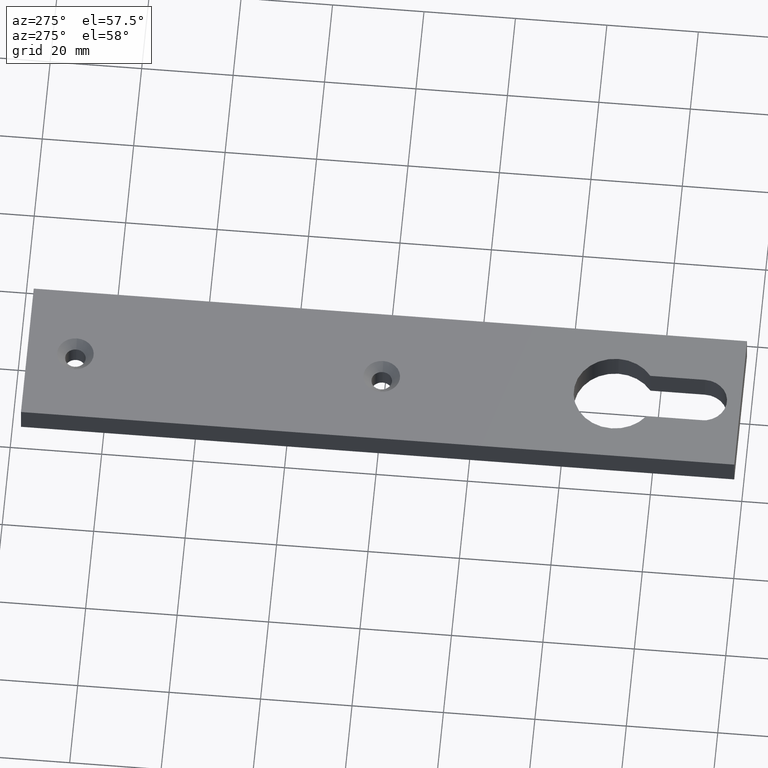
[diagram: clean part render]
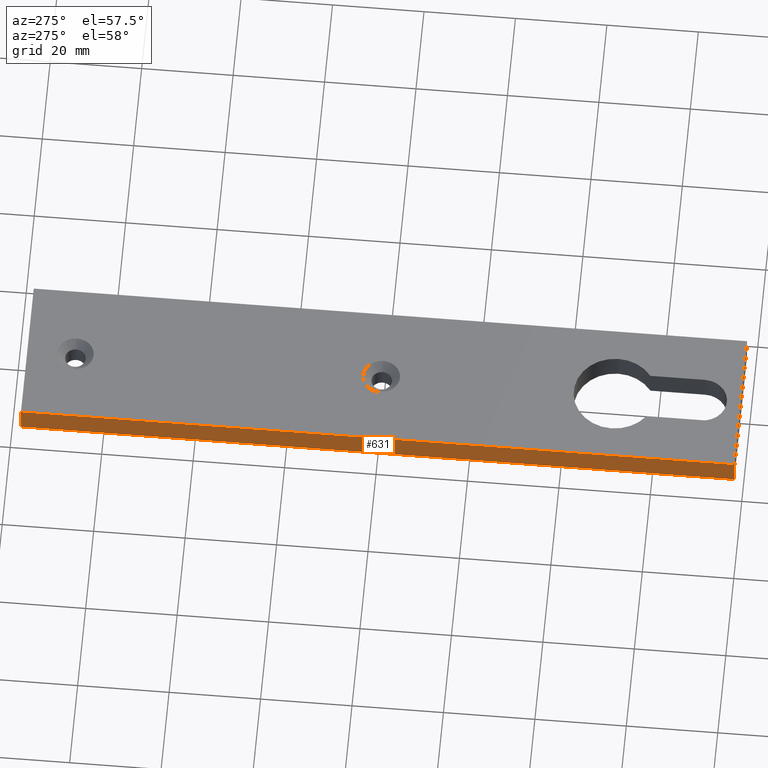
[diagram: same view with one face highlighted and labeled with its STEP entity id]
A machine part, auxiliary view. The second image highlights one B-rep face of the part: STEP entity #631.
In plain terms, the highlighted planar face has unit normal (1, 0, -0).
Its self-contained STEP definition (entity closure, byte-faithful):
#108 = PLANE ( 'NONE',  #6841 ) ;
#175 = ORIENTED_EDGE ( 'NONE', *, *, #7306, .T. ) ;
#268 = ORIENTED_EDGE ( 'NONE', *, *, #3296, .F. ) ;
#486 = VECTOR ( 'NONE', #1326, 1000.000000000000000 ) ;
#631 = ADVANCED_FACE ( 'NONE', ( #8859 ), #108, .F. ) ;
#831 = CARTESIAN_POINT ( 'NONE',  ( -16.00000000000001100, 78.00000000000001400, 6.000000000000000000 ) ) ;
#1326 = DIRECTION ( 'NONE',  ( 1.556803119466365500E-016, -1.000000000000000000, 0.0000000000000000000 ) ) ;
#1997 = CARTESIAN_POINT ( 'NONE',  ( -15.99999999999998600, -77.99999999999998600, 0.0000000000000000000 ) ) ;
#2808 = CARTESIAN_POINT ( 'NONE',  ( -16.00000000000001100, 78.00000000000001400, 6.000000000000000000 ) ) ;
#3246 = DIRECTION ( 'NONE',  ( 1.000000000000000000, 1.556803119466365500E-016, -0.0000000000000000000 ) ) ;
#3296 = EDGE_CURVE ( 'NONE', #4758, #5279, #8881, .T. ) ;
#4500 = EDGE_CURVE ( 'NONE', #5279, #8401, #5829, .T. ) ;
#4758 = VERTEX_POINT ( 'NONE', #5833 ) ;
#5149 = VECTOR ( 'NONE', #7193, 1000.000000000000000 ) ;
#5279 = VERTEX_POINT ( 'NONE', #5662 ) ;
#5296 = VECTOR ( 'NONE', #6218, 1000.000000000000000 ) ;
#5470 = VECTOR ( 'NONE', #8884, 1000.000000000000000 ) ;
#5662 = CARTESIAN_POINT ( 'NONE',  ( -15.99999999999998600, -77.99999999999998600, 6.000000000000000000 ) ) ;
#5716 = CARTESIAN_POINT ( 'NONE',  ( -16.00000000000001100, 78.00000000000001400, 0.0000000000000000000 ) ) ;
#5829 = LINE ( 'NONE', #7970, #5470 ) ;
#5833 = CARTESIAN_POINT ( 'NONE',  ( -16.00000000000001100, 78.00000000000001400, 6.000000000000000000 ) ) ;
#6218 = DIRECTION ( 'NONE',  ( 1.556803119466365500E-016, -1.000000000000000000, 0.0000000000000000000 ) ) ;
#6340 = CARTESIAN_POINT ( 'NONE',  ( -16.00000000000001100, 78.00000000000001400, 6.000000000000000000 ) ) ;
#6841 = AXIS2_PLACEMENT_3D ( 'NONE', #831, #3246, #8168 ) ;
#7193 = DIRECTION ( 'NONE',  ( -0.0000000000000000000, -0.0000000000000000000, -1.000000000000000000 ) ) ;
#7306 = EDGE_CURVE ( 'NONE', #7432, #8401, #9438, .T. ) ;
#7432 = VERTEX_POINT ( 'NONE', #5716 ) ;
#7930 = EDGE_LOOP ( 'NONE', ( #175, #8413, #268, #8785 ) ) ;
#7970 = CARTESIAN_POINT ( 'NONE',  ( -15.99999999999998600, -77.99999999999998600, 6.000000000000000000 ) ) ;
#8168 = DIRECTION ( 'NONE',  ( -1.556803119466365500E-016, 1.000000000000000000, 0.0000000000000000000 ) ) ;
#8401 = VERTEX_POINT ( 'NONE', #1997 ) ;
#8413 = ORIENTED_EDGE ( 'NONE', *, *, #4500, .F. ) ;
#8785 = ORIENTED_EDGE ( 'NONE', *, *, #9640, .T. ) ;
#8859 = FACE_OUTER_BOUND ( 'NONE', #7930, .T. ) ;
#8881 = LINE ( 'NONE', #2808, #486 ) ;
#8884 = DIRECTION ( 'NONE',  ( -0.0000000000000000000, -0.0000000000000000000, -1.000000000000000000 ) ) ;
#9438 = LINE ( 'NONE', #10208, #5296 ) ;
#9640 = EDGE_CURVE ( 'NONE', #4758, #7432, #9673, .T. ) ;
#9673 = LINE ( 'NONE', #6340, #5149 ) ;
#10208 = CARTESIAN_POINT ( 'NONE',  ( -16.00000000000001100, 78.00000000000001400, 0.0000000000000000000 ) ) ;